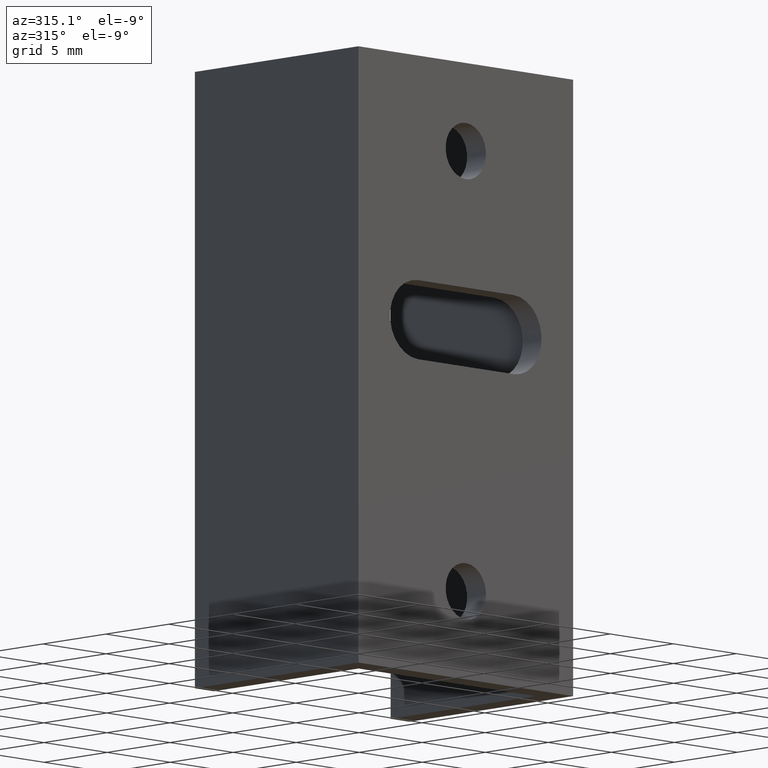
[diagram: clean part render]
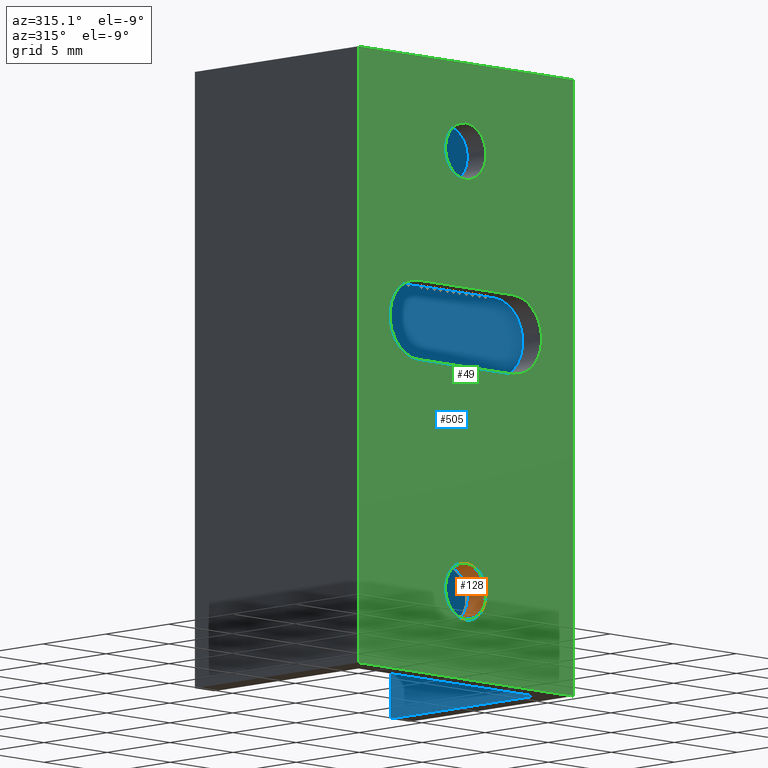
[diagram: same view with three faces highlighted in distinct colors, each labeled with its STEP entity id]
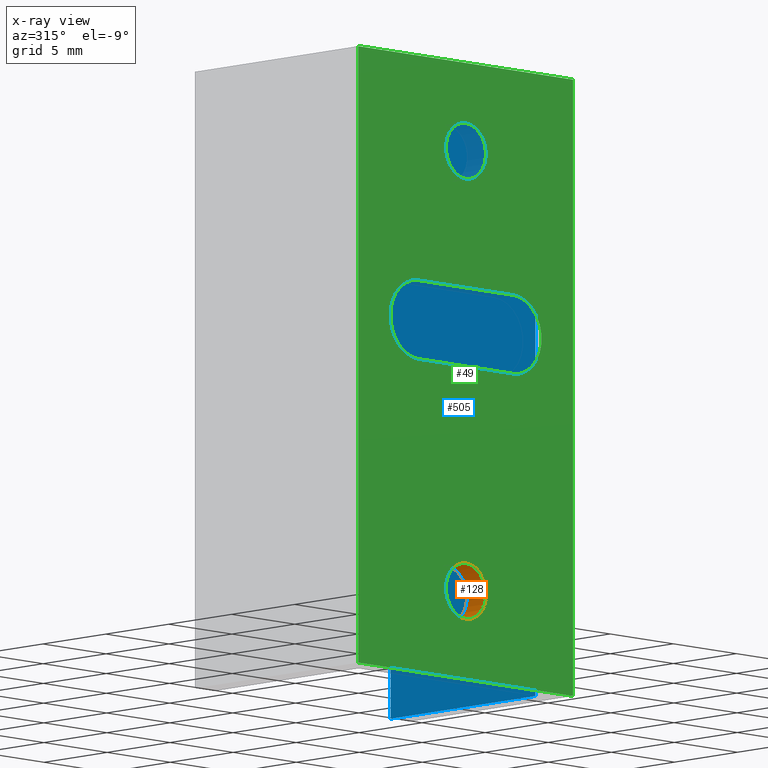
[diagram: x-ray of the same camera — body ghosted, the three highlighted faces saturated]
A machine part, auxiliary view with three faces highlighted in distinct colors.
The next image is the same camera in x-ray (body ghosted, the three faces saturated) — at least one of them is partly hidden behind the body in this view.
Their STEP definitions:

[orange] entity #128 — the highlighted cylindrical surface (edge-blend (fillet) strip) has radius 1.6 mm, axis along (-0, 1, -0).
#5 = ORIENTED_EDGE ( 'NONE', *, *, #275, .T. ) ;
#40 = AXIS2_PLACEMENT_3D ( 'NONE', #449, #248, #438 ) ;
#42 = CARTESIAN_POINT ( 'NONE',  ( 8.500000000000010658, -6.288372600415925717E-15, -28.40000000000000924 ) ) ;
#51 = EDGE_LOOP ( 'NONE', ( #200, #108, #116, #5 ) ) ;
#59 = CARTESIAN_POINT ( 'NONE',  ( 8.500000000000010658, 1.499999999999993561, -31.60000000000000142 ) ) ;
#65 = EDGE_CURVE ( 'NONE', #204, #411, #521, .T. ) ;
#80 = EDGE_CURVE ( 'NONE', #98, #309, #583, .T. ) ;
#81 = CIRCLE ( 'NONE', #620, 1.600000000000000755 ) ;
#89 = CYLINDRICAL_SURFACE ( 'NONE', #40, 1.600000000000000755 ) ;
#93 = DIRECTION ( 'NONE',  ( 0.0000000000000000000, 0.0000000000000000000, 1.000000000000000000 ) ) ;
#98 = VERTEX_POINT ( 'NONE', #580 ) ;
#108 = ORIENTED_EDGE ( 'NONE', *, *, #187, .F. ) ;
#116 = ORIENTED_EDGE ( 'NONE', *, *, #65, .T. ) ;
#127 = DIRECTION ( 'NONE',  ( -0.0000000000000000000, 1.000000000000000000, -0.0000000000000000000 ) ) ;
#128 = ADVANCED_FACE ( 'NONE', ( #539 ), #89, .F. ) ;
#166 = CARTESIAN_POINT ( 'NONE',  ( 8.500000000000010658, 1.499999999999993561, -28.40000000000000568 ) ) ;
#187 = EDGE_CURVE ( 'NONE', #204, #98, #246, .T. ) ;
#193 = DIRECTION ( 'NONE',  ( -0.0000000000000000000, 1.000000000000000000, -0.0000000000000000000 ) ) ;
#200 = ORIENTED_EDGE ( 'NONE', *, *, #80, .F. ) ;
#204 = VERTEX_POINT ( 'NONE', #42 ) ;
#246 = CIRCLE ( 'NONE', #564, 1.599999999999997202 ) ;
#248 = DIRECTION ( 'NONE',  ( -0.0000000000000000000, 1.000000000000000000, -0.0000000000000000000 ) ) ;
#260 = DIRECTION ( 'NONE',  ( -0.0000000000000000000, 1.000000000000000000, -0.0000000000000000000 ) ) ;
#275 = EDGE_CURVE ( 'NONE', #411, #309, #81, .T. ) ;
#309 = VERTEX_POINT ( 'NONE', #59 ) ;
#324 = CARTESIAN_POINT ( 'NONE',  ( 8.500000000000010658, 1.499999999999993783, -31.60000000000000142 ) ) ;
#366 = VECTOR ( 'NONE', #127, 1000.000000000000000 ) ;
#379 = DIRECTION ( 'NONE',  ( -0.0000000000000000000, 1.000000000000000000, -0.0000000000000000000 ) ) ;
#411 = VERTEX_POINT ( 'NONE', #166 ) ;
#438 = DIRECTION ( 'NONE',  ( 0.0000000000000000000, 0.0000000000000000000, 1.000000000000000000 ) ) ;
#449 = CARTESIAN_POINT ( 'NONE',  ( 8.500000000000010658, 1.499999999999993783, -30.00000000000000711 ) ) ;
#466 = DIRECTION ( 'NONE',  ( 0.0000000000000000000, 0.0000000000000000000, 1.000000000000000000 ) ) ;
#488 = VECTOR ( 'NONE', #379, 1000.000000000000000 ) ;
#521 = LINE ( 'NONE', #630, #488 ) ;
#539 = FACE_OUTER_BOUND ( 'NONE', #51, .T. ) ;
#564 = AXIS2_PLACEMENT_3D ( 'NONE', #592, #193, #93 ) ;
#580 = CARTESIAN_POINT ( 'NONE',  ( 8.500000000000010658, -6.288372600415925717E-15, -31.60000000000000142 ) ) ;
#583 = LINE ( 'NONE', #324, #366 ) ;
#592 = CARTESIAN_POINT ( 'NONE',  ( 8.500000000000010658, -6.288372600415925717E-15, -30.00000000000000711 ) ) ;
#620 = AXIS2_PLACEMENT_3D ( 'NONE', #623, #260, #466 ) ;
#623 = CARTESIAN_POINT ( 'NONE',  ( 8.500000000000010658, 1.499999999999993561, -30.00000000000000711 ) ) ;
#630 = CARTESIAN_POINT ( 'NONE',  ( 8.500000000000010658, 1.499999999999993783, -28.40000000000000568 ) ) ;

[blue] entity #505 — the highlighted planar face has unit normal (-1, -0, 0).
#52 = VECTOR ( 'NONE', #469, 1000.000000000000000 ) ;
#85 = CARTESIAN_POINT ( 'NONE',  ( 15.50000000000002132, 1.499999999999993783, 0.0000000000000000000 ) ) ;
#125 = PLANE ( 'NONE',  #350 ) ;
#136 = DIRECTION ( 'NONE',  ( 7.542275982507853202E-16, -1.000000000000000000, -0.0000000000000000000 ) ) ;
#152 = EDGE_CURVE ( 'NONE', #266, #287, #235, .T. ) ;
#160 = VECTOR ( 'NONE', #136, 1000.000000000000000 ) ;
#161 = CARTESIAN_POINT ( 'NONE',  ( 15.50000000000002132, 1.499999999999993783, 0.0000000000000000000 ) ) ;
#168 = EDGE_CURVE ( 'NONE', #394, #266, #290, .T. ) ;
#179 = DIRECTION ( 'NONE',  ( 7.542275982507853202E-16, -1.000000000000000000, 0.0000000000000000000 ) ) ;
#180 = EDGE_CURVE ( 'NONE', #394, #345, #604, .T. ) ;
#185 = CARTESIAN_POINT ( 'NONE',  ( 15.50000000000001243, 12.99999999999999822, -35.00000000000000000 ) ) ;
#206 = ORIENTED_EDGE ( 'NONE', *, *, #180, .T. ) ;
#215 = FACE_OUTER_BOUND ( 'NONE', #586, .T. ) ;
#235 = LINE ( 'NONE', #85, #160 ) ;
#266 = VERTEX_POINT ( 'NONE', #496 ) ;
#268 = ORIENTED_EDGE ( 'NONE', *, *, #152, .F. ) ;
#287 = VERTEX_POINT ( 'NONE', #161 ) ;
#290 = LINE ( 'NONE', #185, #529 ) ;
#301 = DIRECTION ( 'NONE',  ( 0.0000000000000000000, 0.0000000000000000000, 1.000000000000000000 ) ) ;
#304 = CARTESIAN_POINT ( 'NONE',  ( 15.50000000000002132, 1.499999999999993783, -35.00000000000000000 ) ) ;
#345 = VERTEX_POINT ( 'NONE', #359 ) ;
#350 = AXIS2_PLACEMENT_3D ( 'NONE', #484, #380, #179 ) ;
#354 = EDGE_CURVE ( 'NONE', #345, #287, #506, .T. ) ;
#359 = CARTESIAN_POINT ( 'NONE',  ( 15.50000000000002132, 1.499999999999993783, -35.00000000000000000 ) ) ;
#380 = DIRECTION ( 'NONE',  ( -1.000000000000000000, -7.542275982507853202E-16, 0.0000000000000000000 ) ) ;
#392 = DIRECTION ( 'NONE',  ( 7.542275982507853202E-16, -1.000000000000000000, -0.0000000000000000000 ) ) ;
#394 = VERTEX_POINT ( 'NONE', #508 ) ;
#452 = ORIENTED_EDGE ( 'NONE', *, *, #168, .F. ) ;
#469 = DIRECTION ( 'NONE',  ( 0.0000000000000000000, 0.0000000000000000000, 1.000000000000000000 ) ) ;
#484 = CARTESIAN_POINT ( 'NONE',  ( 15.50000000000002132, 1.499999999999993783, -35.00000000000000000 ) ) ;
#496 = CARTESIAN_POINT ( 'NONE',  ( 15.50000000000001243, 12.99999999999999822, 0.0000000000000000000 ) ) ;
#500 = VECTOR ( 'NONE', #392, 1000.000000000000000 ) ;
#505 = ADVANCED_FACE ( 'NONE', ( #215 ), #125, .T. ) ;
#506 = LINE ( 'NONE', #512, #52 ) ;
#508 = CARTESIAN_POINT ( 'NONE',  ( 15.50000000000001243, 12.99999999999999822, -35.00000000000000000 ) ) ;
#512 = CARTESIAN_POINT ( 'NONE',  ( 15.50000000000002132, 1.499999999999993783, -35.00000000000000000 ) ) ;
#529 = VECTOR ( 'NONE', #301, 1000.000000000000000 ) ;
#560 = ORIENTED_EDGE ( 'NONE', *, *, #354, .T. ) ;
#586 = EDGE_LOOP ( 'NONE', ( #268, #452, #206, #560 ) ) ;
#604 = LINE ( 'NONE', #304, #500 ) ;

[green] entity #49 — the highlighted planar face has unit normal (-0, -1, 0).
#3 = EDGE_LOOP ( 'NONE', ( #182, #609, #254, #64 ) ) ;
#15 = CARTESIAN_POINT ( 'NONE',  ( 8.500000000000010658, -6.288372600415925717E-15, -30.00000000000000711 ) ) ;
#16 = ORIENTED_EDGE ( 'NONE', *, *, #154, .F. ) ;
#18 = EDGE_CURVE ( 'NONE', #414, #139, #477, .T. ) ;
#20 = CARTESIAN_POINT ( 'NONE',  ( 8.500000000000010658, -6.288372600415925717E-15, -3.400000000000001243 ) ) ;
#24 = DIRECTION ( 'NONE',  ( 1.000000000000000000, -1.260665822651691747E-17, -0.0000000000000000000 ) ) ;
#25 = CARTESIAN_POINT ( 'NONE',  ( 0.0000000000000000000, 0.0000000000000000000, -35.00000000000000000 ) ) ;
#31 = VERTEX_POINT ( 'NONE', #25 ) ;
#39 = EDGE_LOOP ( 'NONE', ( #510, #47 ) ) ;
#42 = CARTESIAN_POINT ( 'NONE',  ( 8.500000000000010658, -6.288372600415925717E-15, -28.40000000000000924 ) ) ;
#44 = EDGE_CURVE ( 'NONE', #314, #475, #642, .T. ) ;
#47 = ORIENTED_EDGE ( 'NONE', *, *, #382, .T. ) ;
#49 = ADVANCED_FACE ( 'NONE', ( #423, #487, #233, #121 ), #436, .T. ) ;
#57 = VERTEX_POINT ( 'NONE', #282 ) ;
#64 = ORIENTED_EDGE ( 'NONE', *, *, #628, .T. ) ;
#68 = AXIS2_PLACEMENT_3D ( 'NONE', #15, #153, #256 ) ;
#70 = EDGE_LOOP ( 'NONE', ( #118, #16, #353, #225 ) ) ;
#72 = DIRECTION ( 'NONE',  ( -1.260665822651691901E-17, -1.000000000000000000, 0.0000000000000000000 ) ) ;
#75 = DIRECTION ( 'NONE',  ( 1.000000000000000000, -1.260665822651691901E-17, 0.0000000000000000000 ) ) ;
#82 = LINE ( 'NONE', #300, #584 ) ;
#93 = DIRECTION ( 'NONE',  ( 0.0000000000000000000, 0.0000000000000000000, 1.000000000000000000 ) ) ;
#98 = VERTEX_POINT ( 'NONE', #580 ) ;
#101 = DIRECTION ( 'NONE',  ( 0.0000000000000000000, 0.0000000000000000000, 1.000000000000000000 ) ) ;
#111 = CIRCLE ( 'NONE', #393, 2.250000000000000444 ) ;
#118 = ORIENTED_EDGE ( 'NONE', *, *, #645, .F. ) ;
#121 = FACE_OUTER_BOUND ( 'NONE', #70, .T. ) ;
#130 = CARTESIAN_POINT ( 'NONE',  ( 17.00000000000002132, -2.143131898507878898E-16, -35.00000000000000000 ) ) ;
#133 = ORIENTED_EDGE ( 'NONE', *, *, #44, .T. ) ;
#139 = VERTEX_POINT ( 'NONE', #339 ) ;
#149 = VERTEX_POINT ( 'NONE', #549 ) ;
#153 = DIRECTION ( 'NONE',  ( -0.0000000000000000000, 1.000000000000000000, -0.0000000000000000000 ) ) ;
#154 = EDGE_CURVE ( 'NONE', #31, #341, #337, .T. ) ;
#164 = DIRECTION ( 'NONE',  ( 0.0000000000000000000, 1.000000000000000000, 0.0000000000000000000 ) ) ;
#173 = DIRECTION ( 'NONE',  ( 0.0000000000000000000, 1.000000000000000000, 0.0000000000000000000 ) ) ;
#174 = CARTESIAN_POINT ( 'NONE',  ( 8.500000000000010658, -6.288372600415925717E-15, -5.000000000000000000 ) ) ;
#175 = CIRCLE ( 'NONE', #457, 1.599999999999998979 ) ;
#181 = DIRECTION ( 'NONE',  ( -0.0000000000000000000, 1.000000000000000000, -0.0000000000000000000 ) ) ;
#182 = ORIENTED_EDGE ( 'NONE', *, *, #285, .T. ) ;
#183 = CIRCLE ( 'NONE', #68, 1.599999999999997202 ) ;
#187 = EDGE_CURVE ( 'NONE', #204, #98, #246, .T. ) ;
#188 = LINE ( 'NONE', #247, #221 ) ;
#192 = LINE ( 'NONE', #232, #270 ) ;
#193 = DIRECTION ( 'NONE',  ( -0.0000000000000000000, 1.000000000000000000, -0.0000000000000000000 ) ) ;
#204 = VERTEX_POINT ( 'NONE', #42 ) ;
#221 = VECTOR ( 'NONE', #546, 1000.000000000000000 ) ;
#225 = ORIENTED_EDGE ( 'NONE', *, *, #18, .T. ) ;
#230 = CARTESIAN_POINT ( 'NONE',  ( 12.25000000000001243, -6.288372600415925717E-15, -15.00000000000000000 ) ) ;
#232 = CARTESIAN_POINT ( 'NONE',  ( 4.750000000000013323, -6.288372600415925717E-15, -17.25000000000000000 ) ) ;
#233 = FACE_BOUND ( 'NONE', #39, .T. ) ;
#244 = CARTESIAN_POINT ( 'NONE',  ( 0.0000000000000000000, 0.0000000000000000000, -35.00000000000000000 ) ) ;
#246 = CIRCLE ( 'NONE', #564, 1.599999999999997202 ) ;
#247 = CARTESIAN_POINT ( 'NONE',  ( 17.00000000000002132, -2.143131898507878898E-16, 0.0000000000000000000 ) ) ;
#252 = VERTEX_POINT ( 'NONE', #401 ) ;
#254 = ORIENTED_EDGE ( 'NONE', *, *, #451, .T. ) ;
#256 = DIRECTION ( 'NONE',  ( 0.0000000000000000000, 0.0000000000000000000, 1.000000000000000000 ) ) ;
#257 = VECTOR ( 'NONE', #328, 1000.000000000000000 ) ;
#263 = CARTESIAN_POINT ( 'NONE',  ( 8.500000000000010658, -6.288372600415925717E-15, -6.599999999999998757 ) ) ;
#270 = VECTOR ( 'NONE', #336, 1000.000000000000000 ) ;
#282 = CARTESIAN_POINT ( 'NONE',  ( 4.750000000000013323, -6.288372600415925717E-15, -17.25000000000000000 ) ) ;
#285 = EDGE_CURVE ( 'NONE', #57, #149, #111, .T. ) ;
#300 = CARTESIAN_POINT ( 'NONE',  ( 4.750000000000012434, -6.288372600415925717E-15, -12.75000000000000178 ) ) ;
#303 = VECTOR ( 'NONE', #352, 1000.000000000000000 ) ;
#307 = EDGE_LOOP ( 'NONE', ( #602, #133 ) ) ;
#314 = VERTEX_POINT ( 'NONE', #263 ) ;
#328 = DIRECTION ( 'NONE',  ( 0.0000000000000000000, 0.0000000000000000000, 1.000000000000000000 ) ) ;
#336 = DIRECTION ( 'NONE',  ( -1.000000000000000000, -0.0000000000000000000, -0.0000000000000000000 ) ) ;
#337 = LINE ( 'NONE', #244, #303 ) ;
#339 = CARTESIAN_POINT ( 'NONE',  ( 17.00000000000002132, -2.143131898507878898E-16, 0.0000000000000000000 ) ) ;
#341 = VERTEX_POINT ( 'NONE', #356 ) ;
#342 = AXIS2_PLACEMENT_3D ( 'NONE', #534, #72, #75 ) ;
#346 = DIRECTION ( 'NONE',  ( 1.000000000000000000, 0.0000000000000000000, -2.312964634635743450E-16 ) ) ;
#352 = DIRECTION ( 'NONE',  ( 0.0000000000000000000, 0.0000000000000000000, 1.000000000000000000 ) ) ;
#353 = ORIENTED_EDGE ( 'NONE', *, *, #435, .T. ) ;
#356 = CARTESIAN_POINT ( 'NONE',  ( 0.0000000000000000000, 0.0000000000000000000, 0.0000000000000000000 ) ) ;
#370 = CARTESIAN_POINT ( 'NONE',  ( 4.750000000000013323, -6.288372600415925717E-15, -15.00000000000000178 ) ) ;
#371 = VERTEX_POINT ( 'NONE', #608 ) ;
#373 = CARTESIAN_POINT ( 'NONE',  ( 17.00000000000002132, -2.143131898507878898E-16, -35.00000000000000000 ) ) ;
#382 = EDGE_CURVE ( 'NONE', #98, #204, #183, .T. ) ;
#389 = DIRECTION ( 'NONE',  ( -0.0000000000000000000, 1.000000000000000000, -0.0000000000000000000 ) ) ;
#393 = AXIS2_PLACEMENT_3D ( 'NONE', #370, #164, #101 ) ;
#401 = CARTESIAN_POINT ( 'NONE',  ( 12.25000000000001066, -1.544315632748324108E-16, -12.75000000000000178 ) ) ;
#414 = VERTEX_POINT ( 'NONE', #578 ) ;
#423 = FACE_BOUND ( 'NONE', #3, .T. ) ;
#427 = DIRECTION ( 'NONE',  ( 0.0000000000000000000, 0.0000000000000000000, 1.000000000000000000 ) ) ;
#428 = LINE ( 'NONE', #373, #625 ) ;
#435 = EDGE_CURVE ( 'NONE', #31, #414, #428, .T. ) ;
#436 = PLANE ( 'NONE',  #342 ) ;
#451 = EDGE_CURVE ( 'NONE', #252, #371, #514, .T. ) ;
#457 = AXIS2_PLACEMENT_3D ( 'NONE', #491, #389, #535 ) ;
#475 = VERTEX_POINT ( 'NONE', #20 ) ;
#477 = LINE ( 'NONE', #130, #257 ) ;
#487 = FACE_BOUND ( 'NONE', #307, .T. ) ;
#491 = CARTESIAN_POINT ( 'NONE',  ( 8.500000000000010658, -6.288372600415925717E-15, -5.000000000000000000 ) ) ;
#510 = ORIENTED_EDGE ( 'NONE', *, *, #187, .T. ) ;
#514 = CIRCLE ( 'NONE', #600, 2.249999999999998668 ) ;
#534 = CARTESIAN_POINT ( 'NONE',  ( 17.00000000000002132, -2.143131898507878898E-16, -35.00000000000000000 ) ) ;
#535 = DIRECTION ( 'NONE',  ( 0.0000000000000000000, 0.0000000000000000000, 1.000000000000000000 ) ) ;
#546 = DIRECTION ( 'NONE',  ( 1.000000000000000000, -1.260665822651691747E-17, -0.0000000000000000000 ) ) ;
#549 = CARTESIAN_POINT ( 'NONE',  ( 4.750000000000012434, -6.288372600415925717E-15, -12.75000000000000178 ) ) ;
#564 = AXIS2_PLACEMENT_3D ( 'NONE', #592, #193, #93 ) ;
#578 = CARTESIAN_POINT ( 'NONE',  ( 17.00000000000002132, -2.143131898507878898E-16, -35.00000000000000000 ) ) ;
#580 = CARTESIAN_POINT ( 'NONE',  ( 8.500000000000010658, -6.288372600415925717E-15, -31.60000000000000142 ) ) ;
#584 = VECTOR ( 'NONE', #346, 1000.000000000000000 ) ;
#592 = CARTESIAN_POINT ( 'NONE',  ( 8.500000000000010658, -6.288372600415925717E-15, -30.00000000000000711 ) ) ;
#594 = EDGE_CURVE ( 'NONE', #149, #252, #82, .T. ) ;
#600 = AXIS2_PLACEMENT_3D ( 'NONE', #230, #173, #636 ) ;
#602 = ORIENTED_EDGE ( 'NONE', *, *, #641, .T. ) ;
#608 = CARTESIAN_POINT ( 'NONE',  ( 12.25000000000001066, -6.288372600415925717E-15, -17.25000000000000000 ) ) ;
#609 = ORIENTED_EDGE ( 'NONE', *, *, #594, .T. ) ;
#625 = VECTOR ( 'NONE', #24, 1000.000000000000000 ) ;
#628 = EDGE_CURVE ( 'NONE', #371, #57, #192, .T. ) ;
#633 = AXIS2_PLACEMENT_3D ( 'NONE', #174, #181, #427 ) ;
#636 = DIRECTION ( 'NONE',  ( 0.0000000000000000000, 0.0000000000000000000, 1.000000000000000000 ) ) ;
#641 = EDGE_CURVE ( 'NONE', #475, #314, #175, .T. ) ;
#642 = CIRCLE ( 'NONE', #633, 1.599999999999998979 ) ;
#645 = EDGE_CURVE ( 'NONE', #341, #139, #188, .T. ) ;